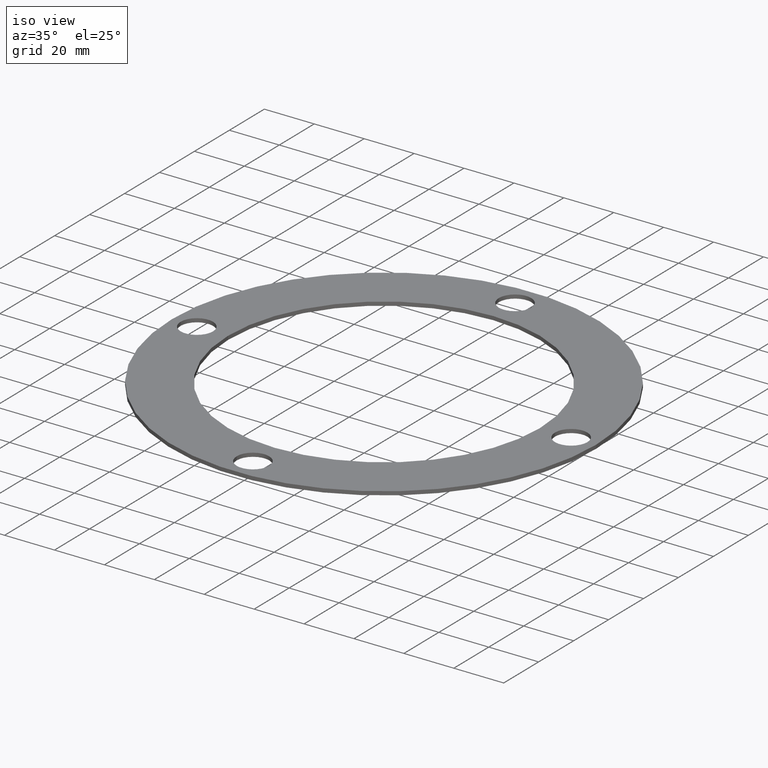
[diagram: clean part render]
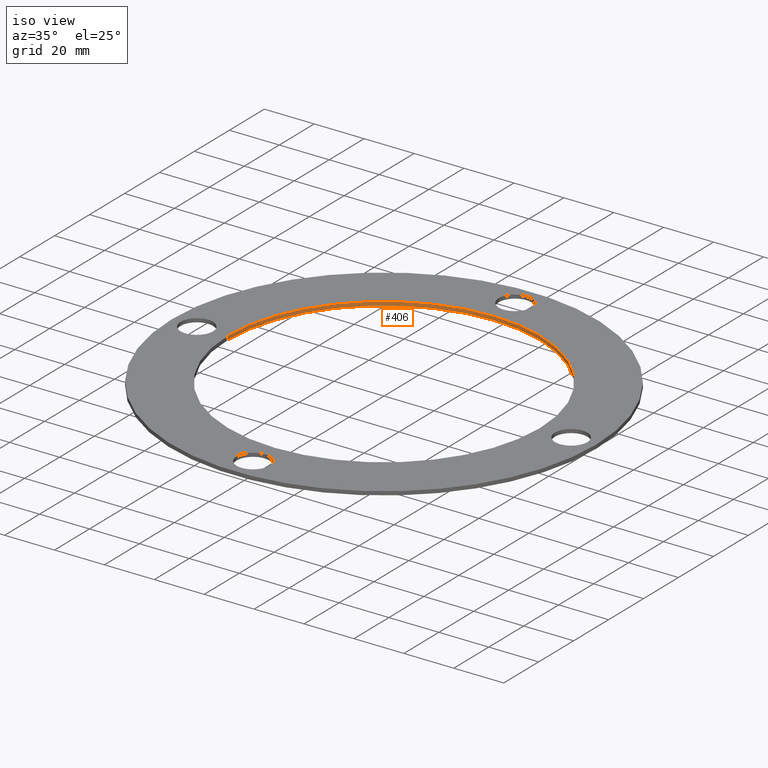
[diagram: same view with one face highlighted and labeled with its STEP entity id]
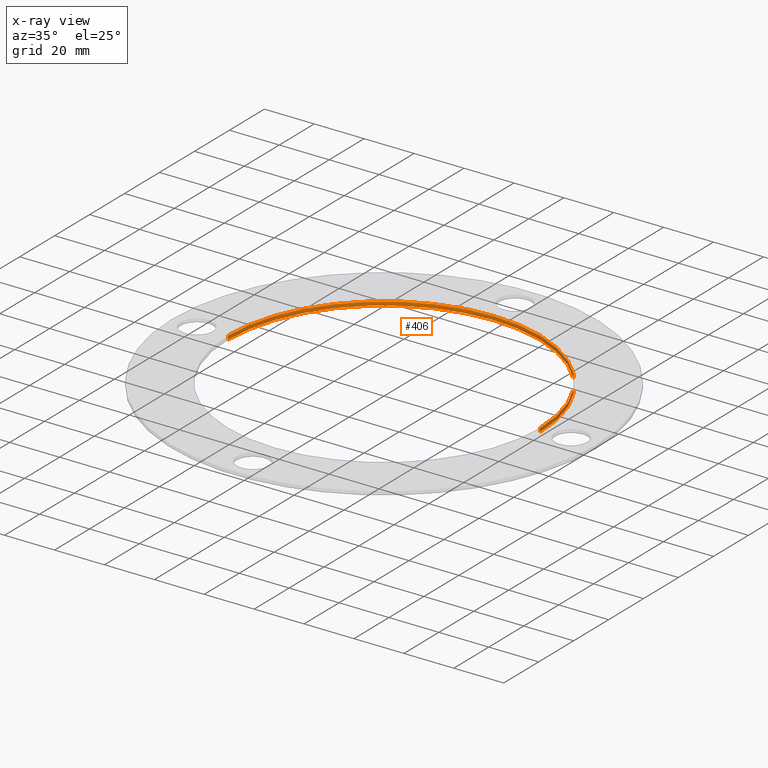
[diagram: x-ray of the same camera — body ghosted, the highlighted face saturated]
A machine part, iso view. The second image highlights one B-rep face of the part: STEP entity #406.
The next image is the same camera in x-ray: the body ghosted, the highlighted face saturated — about 0% of this face is hidden behind the body in this view.
In plain terms, the highlighted cylindrical surface (partial cylindrical patch) has radius 62.5 mm, axis along (-0, 0, -1).
Its self-contained STEP definition (entity closure, byte-faithful):
#7 = DIRECTION ( 'NONE',  ( 8.517425179052550560E-32, -6.044410759837815523E-32, 1.000000000000000000 ) ) ;
#12 = CARTESIAN_POINT ( 'NONE',  ( 62.50000000000000000, 7.654042494671106110E-15, -5.323390736907844100E-30 ) ) ;
#13 = EDGE_CURVE ( 'NONE', #377, #356, #36, .T. ) ;
#22 = ORIENTED_EDGE ( 'NONE', *, *, #336, .F. ) ;
#24 = DIRECTION ( 'NONE',  ( 1.000000000000000000, 0.000000000000000000, 0.000000000000000000 ) ) ;
#36 = CIRCLE ( 'NONE', #184, 62.50000000000000000 ) ;
#52 = DIRECTION ( 'NONE',  ( -8.517425179052550560E-32, 6.044410759837815523E-32, -1.000000000000000000 ) ) ;
#58 = CARTESIAN_POINT ( 'NONE',  ( -62.50000000000000000, 1.479567528096384971E-28, 5.323390736907844100E-30 ) ) ;
#61 = DIRECTION ( 'NONE',  ( -8.517425179052550560E-32, 6.044410759837815523E-32, -1.000000000000000000 ) ) ;
#65 = LINE ( 'NONE', #396, #412 ) ;
#85 = DIRECTION ( 'NONE',  ( -8.517425179052550560E-32, 6.044410759837815523E-32, -1.000000000000000000 ) ) ;
#94 = DIRECTION ( 'NONE',  ( -1.000000000000000000, 0.000000000000000000, 0.000000000000000000 ) ) ;
#102 = CARTESIAN_POINT ( 'NONE',  ( -1.972152263052529514E-28, 1.479114197289397135E-28, 1.499999999999945821 ) ) ;
#106 = ORIENTED_EDGE ( 'NONE', *, *, #342, .F. ) ;
#109 = VECTOR ( 'NONE', #85, 1000.000000000000000 ) ;
#120 = CARTESIAN_POINT ( 'NONE',  ( -1.972152263052529514E-28, 1.479114197289397135E-28, 1.499999999999945821 ) ) ;
#134 = CARTESIAN_POINT ( 'NONE',  ( 62.50000000000000000, 7.654042494671106110E-15, 1.499999999999945821 ) ) ;
#153 = DIRECTION ( 'NONE',  ( 8.517425179052550560E-32, -6.044410759837815523E-32, 1.000000000000000000 ) ) ;
#184 = AXIS2_PLACEMENT_3D ( 'NONE', #120, #153, #24 ) ;
#336 = EDGE_CURVE ( 'NONE', #479, #444, #428, .T. ) ;
#342 = EDGE_CURVE ( 'NONE', #377, #479, #345, .T. ) ;
#345 = LINE ( 'NONE', #379, #109 ) ;
#348 = AXIS2_PLACEMENT_3D ( 'NONE', #102, #61, #94 ) ;
#353 = DIRECTION ( 'NONE',  ( 1.000000000000000000, 0.000000000000000000, 7.525872184246934601E-32 ) ) ;
#356 = VERTEX_POINT ( 'NONE', #422 ) ;
#364 = EDGE_LOOP ( 'NONE', ( #106, #477, #459, #22 ) ) ;
#377 = VERTEX_POINT ( 'NONE', #134 ) ;
#379 = CARTESIAN_POINT ( 'NONE',  ( 62.50000000000000000, 7.654042494671106110E-15, 1.499999999999945821 ) ) ;
#389 = CARTESIAN_POINT ( 'NONE',  ( 0.000000000000000000, 0.000000000000000000, 0.000000000000000000 ) ) ;
#396 = CARTESIAN_POINT ( 'NONE',  ( -62.50000000000000000, 1.479114197289397135E-28, 1.499999999999945821 ) ) ;
#406 = ADVANCED_FACE ( 'NONE', ( #522 ), #478, .F. ) ;
#412 = VECTOR ( 'NONE', #52, 1000.000000000000000 ) ;
#422 = CARTESIAN_POINT ( 'NONE',  ( -62.50000000000000000, 1.479567528096384971E-28, 1.499999999999945821 ) ) ;
#428 = CIRCLE ( 'NONE', #525, 62.50000000000000000 ) ;
#430 = EDGE_CURVE ( 'NONE', #356, #444, #65, .T. ) ;
#444 = VERTEX_POINT ( 'NONE', #58 ) ;
#459 = ORIENTED_EDGE ( 'NONE', *, *, #430, .T. ) ;
#477 = ORIENTED_EDGE ( 'NONE', *, *, #13, .T. ) ;
#478 = CYLINDRICAL_SURFACE ( 'NONE', #348, 62.50000000000000000 ) ;
#479 = VERTEX_POINT ( 'NONE', #12 ) ;
#522 = FACE_OUTER_BOUND ( 'NONE', #364, .T. ) ;
#525 = AXIS2_PLACEMENT_3D ( 'NONE', #389, #7, #353 ) ;